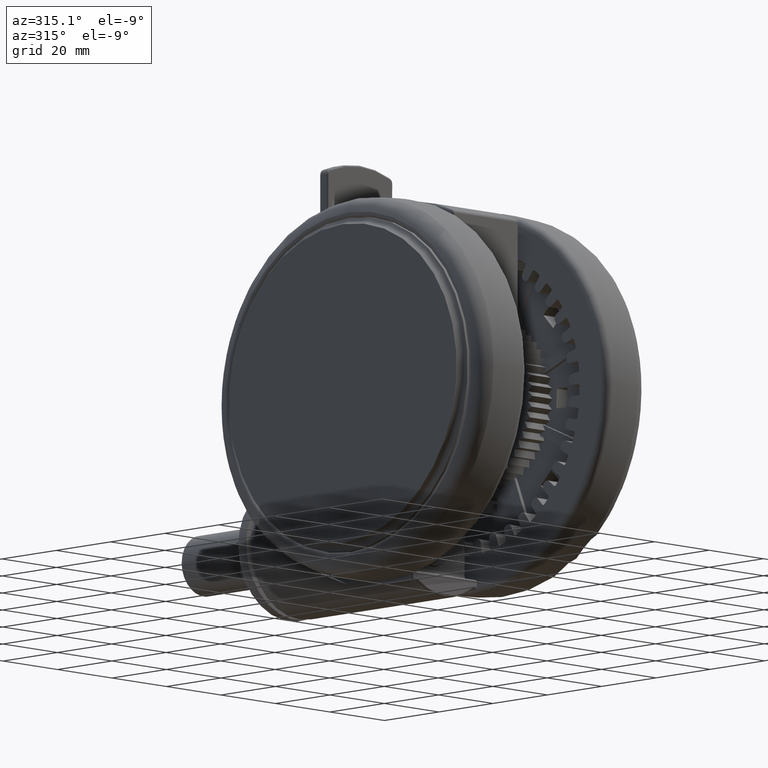
[diagram: clean part render]
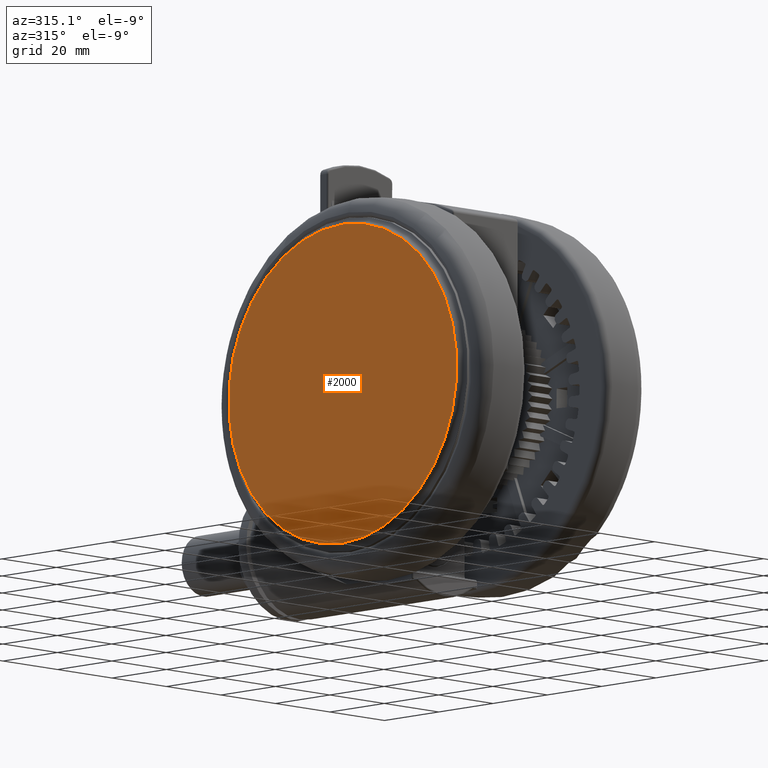
[diagram: same view with one face highlighted and labeled with its STEP entity id]
A machine part, auxiliary view. The second image highlights one B-rep face of the part: STEP entity #2000.
In plain terms, the highlighted planar face has unit normal (1, 0, 0).
Its self-contained STEP definition (entity closure, byte-faithful):
#2000 = ADVANCED_FACE ( 'NONE', ( #24744 ), #7491, .F. ) ;
#3508 = VERTEX_POINT ( 'NONE', #58747 ) ;
#6411 = EDGE_CURVE ( 'NONE', #3508, #60743, #34724, .T. ) ;
#7491 = PLANE ( 'NONE',  #79385 ) ;
#7989 = AXIS2_PLACEMENT_3D ( 'NONE', #37705, #81838, #44093 ) ;
#9846 = CARTESIAN_POINT ( 'NONE',  ( 4.905537434596318700E-008, 4.841775494424105400E-006, -65.19999999999986100 ) ) ;
#11373 = EDGE_CURVE ( 'NONE', #60743, #3508, #12106, .T. ) ;
#12106 = CIRCLE ( 'NONE', #7989, 42.00000000000000000 ) ;
#16175 = DIRECTION ( 'NONE',  ( -0.02026128721468460300, -0.9997947190500678900, 0.0000000000000000000 ) ) ;
#20132 = CARTESIAN_POINT ( 'NONE',  ( 4.905537434596318700E-008, 4.841775494424105400E-006, -65.19999999999986100 ) ) ;
#24744 = FACE_OUTER_BOUND ( 'NONE', #27500, .T. ) ;
#27500 = EDGE_LOOP ( 'NONE', ( #74514, #41692 ) ) ;
#34724 = CIRCLE ( 'NONE', #76485, 42.00000000000000000 ) ;
#37705 = CARTESIAN_POINT ( 'NONE',  ( 4.905537434596318700E-008, 4.841775494424105400E-006, -65.19999999999986100 ) ) ;
#39227 = DIRECTION ( 'NONE',  ( 0.02026128721468460300, 0.9997947190500677800, 0.0000000000000000000 ) ) ;
#41692 = ORIENTED_EDGE ( 'NONE', *, *, #11373, .T. ) ;
#44093 = DIRECTION ( 'NONE',  ( -0.02026128721468460300, -0.9997947190500678900, 0.0000000000000000000 ) ) ;
#45223 = CARTESIAN_POINT ( 'NONE',  ( 0.8509741120721225900, 41.99138304187835000, -65.19999999999986100 ) ) ;
#54051 = DIRECTION ( 'NONE',  ( -0.0000000000000000000, 0.0000000000000000000, -1.000000000000000000 ) ) ;
#58747 = CARTESIAN_POINT ( 'NONE',  ( -0.8509740139613790600, -41.99137335832735800, -65.19999999999986100 ) ) ;
#60743 = VERTEX_POINT ( 'NONE', #45223 ) ;
#74514 = ORIENTED_EDGE ( 'NONE', *, *, #6411, .T. ) ;
#76485 = AXIS2_PLACEMENT_3D ( 'NONE', #9846, #54051, #16175 ) ;
#77041 = DIRECTION ( 'NONE',  ( 0.0000000000000000000, -0.0000000000000000000, 1.000000000000000000 ) ) ;
#79385 = AXIS2_PLACEMENT_3D ( 'NONE', #20132, #77041, #39227 ) ;
#81838 = DIRECTION ( 'NONE',  ( -0.0000000000000000000, 0.0000000000000000000, -1.000000000000000000 ) ) ;